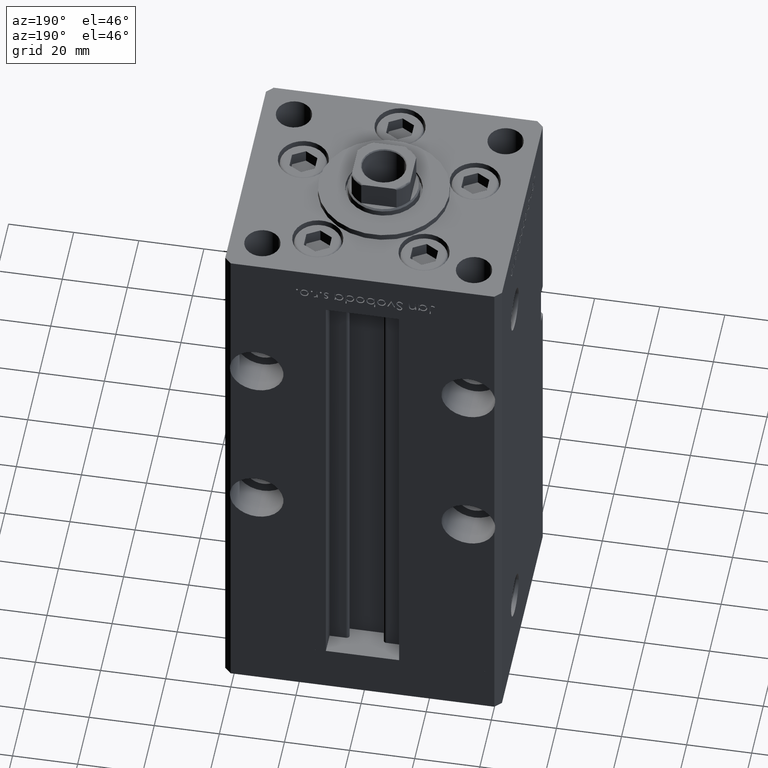
[diagram: clean part render]
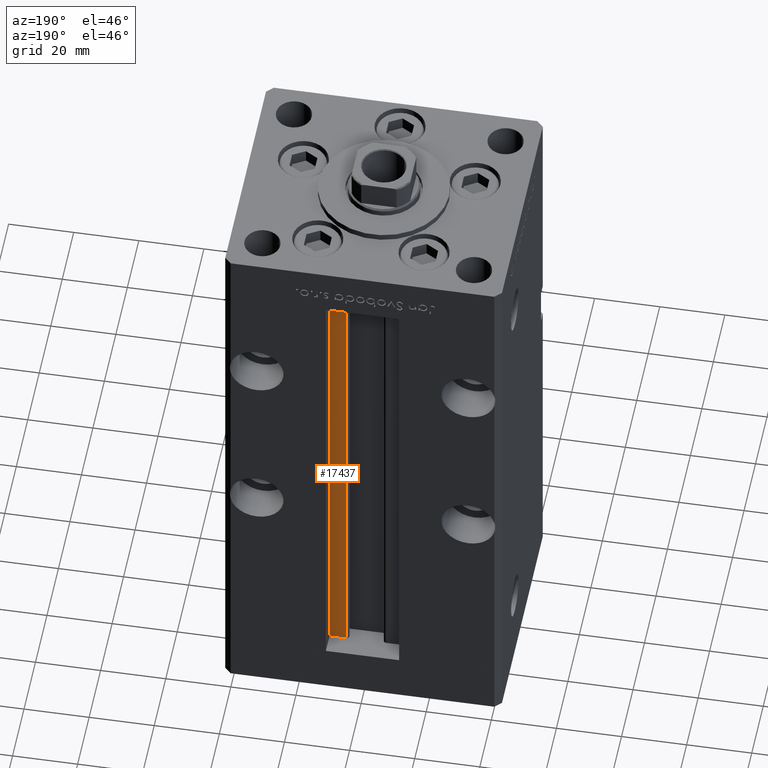
[diagram: same view with one face highlighted and labeled with its STEP entity id]
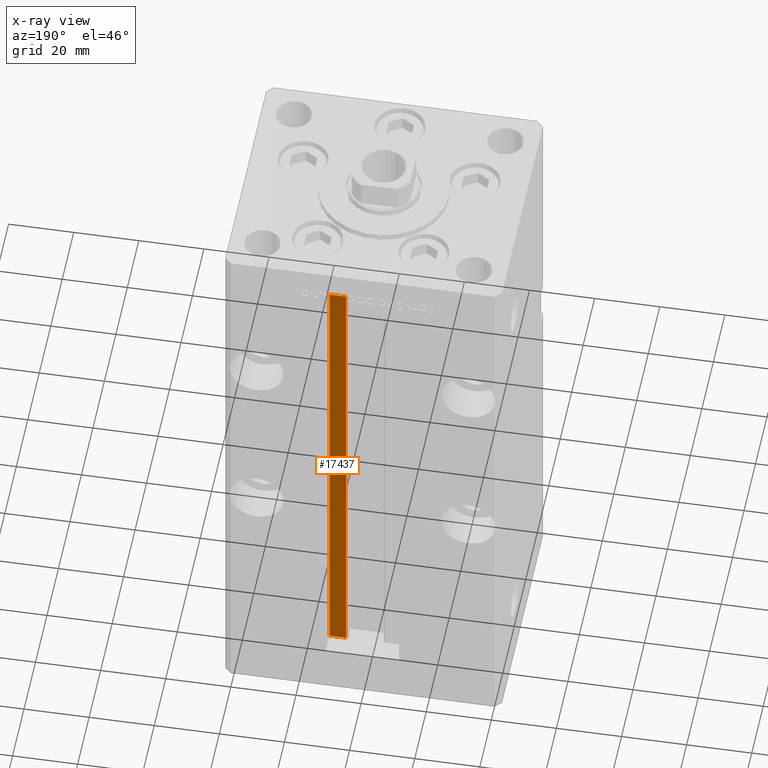
[diagram: x-ray of the same camera — body ghosted, the highlighted face saturated]
A machine part, auxiliary view. The second image highlights one B-rep face of the part: STEP entity #17437.
The next image is the same camera in x-ray: the body ghosted, the highlighted face saturated — about 0% of this face is hidden behind the body in this view.
In plain terms, the highlighted planar face has unit normal (0, -1, 0).
Its self-contained STEP definition (entity closure, byte-faithful):
#7215 = VECTOR ( 'NONE', #41805, 1000.000000000000000 ) ;
#7799 = EDGE_CURVE ( 'NONE', #34355, #30184, #47732, .T. ) ;
#8137 = FACE_OUTER_BOUND ( 'NONE', #25393, .T. ) ;
#9034 = LINE ( 'NONE', #30244, #7215 ) ;
#9035 = CARTESIAN_POINT ( 'NONE',  ( 6.183333333333997928, 31.00000000000000000, 0.000000000000000000 ) ) ;
#15143 = DIRECTION ( 'NONE',  ( 0.000000000000000000, -1.000000000000000000, 0.000000000000000000 ) ) ;
#17437 = ADVANCED_FACE ( 'NONE', ( #8137 ), #19685, .F. ) ;
#18681 = DIRECTION ( 'NONE',  ( -1.000000000000000000, 0.000000000000000000, 0.000000000000000000 ) ) ;
#19685 = PLANE ( 'NONE',  #49386 ) ;
#21696 = CARTESIAN_POINT ( 'NONE',  ( 11.24999999999999822, 31.00000000000000000, 148.5000000000000000 ) ) ;
#22598 = EDGE_CURVE ( 'NONE', #24400, #34355, #49914, .T. ) ;
#24400 = VERTEX_POINT ( 'NONE', #41140 ) ;
#25393 = EDGE_LOOP ( 'NONE', ( #25469, #47239, #42794, #29600 ) ) ;
#25414 = DIRECTION ( 'NONE',  ( -0.000000000000000000, -0.000000000000000000, 1.000000000000000000 ) ) ;
#25469 = ORIENTED_EDGE ( 'NONE', *, *, #22598, .F. ) ;
#26775 = VECTOR ( 'NONE', #18681, 1000.000000000000000 ) ;
#27075 = VERTEX_POINT ( 'NONE', #43264 ) ;
#29600 = ORIENTED_EDGE ( 'NONE', *, *, #7799, .F. ) ;
#30184 = VERTEX_POINT ( 'NONE', #49144 ) ;
#30244 = CARTESIAN_POINT ( 'NONE',  ( 6.183333333333997928, 31.00000000000000000, 0.000000000000000000 ) ) ;
#31537 = DIRECTION ( 'NONE',  ( 0.000000000000000000, -0.000000000000000000, -1.000000000000000000 ) ) ;
#32688 = VECTOR ( 'NONE', #25414, 1000.000000000000000 ) ;
#33476 = LINE ( 'NONE', #9035, #32688 ) ;
#34355 = VERTEX_POINT ( 'NONE', #21696 ) ;
#34683 = EDGE_CURVE ( 'NONE', #27075, #30184, #33476, .T. ) ;
#36871 = CARTESIAN_POINT ( 'NONE',  ( 6.183333333333997928, 31.00000000000000000, 0.000000000000000000 ) ) ;
#38334 = DIRECTION ( 'NONE',  ( -0.000000000000000000, -0.000000000000000000, 1.000000000000000000 ) ) ;
#39341 = VECTOR ( 'NONE', #38334, 1000.000000000000000 ) ;
#41140 = CARTESIAN_POINT ( 'NONE',  ( 11.24999999999999822, 31.00000000000000000, 0.000000000000000000 ) ) ;
#41805 = DIRECTION ( 'NONE',  ( 1.000000000000000000, 0.000000000000000000, 0.000000000000000000 ) ) ;
#42794 = ORIENTED_EDGE ( 'NONE', *, *, #34683, .T. ) ;
#43264 = CARTESIAN_POINT ( 'NONE',  ( 6.183333333333997928, 31.00000000000000000, 0.000000000000000000 ) ) ;
#47239 = ORIENTED_EDGE ( 'NONE', *, *, #48467, .F. ) ;
#47732 = LINE ( 'NONE', #52027, #26775 ) ;
#48467 = EDGE_CURVE ( 'NONE', #27075, #24400, #9034, .T. ) ;
#49144 = CARTESIAN_POINT ( 'NONE',  ( 6.183333333333997928, 31.00000000000000000, 148.5000000000000000 ) ) ;
#49386 = AXIS2_PLACEMENT_3D ( 'NONE', #36871, #15143, #31537 ) ;
#49914 = LINE ( 'NONE', #50448, #39341 ) ;
#50448 = CARTESIAN_POINT ( 'NONE',  ( 11.24999999999999822, 31.00000000000000000, 0.000000000000000000 ) ) ;
#52027 = CARTESIAN_POINT ( 'NONE',  ( 0.000000000000000000, 31.00000000000000000, 148.5000000000000000 ) ) ;